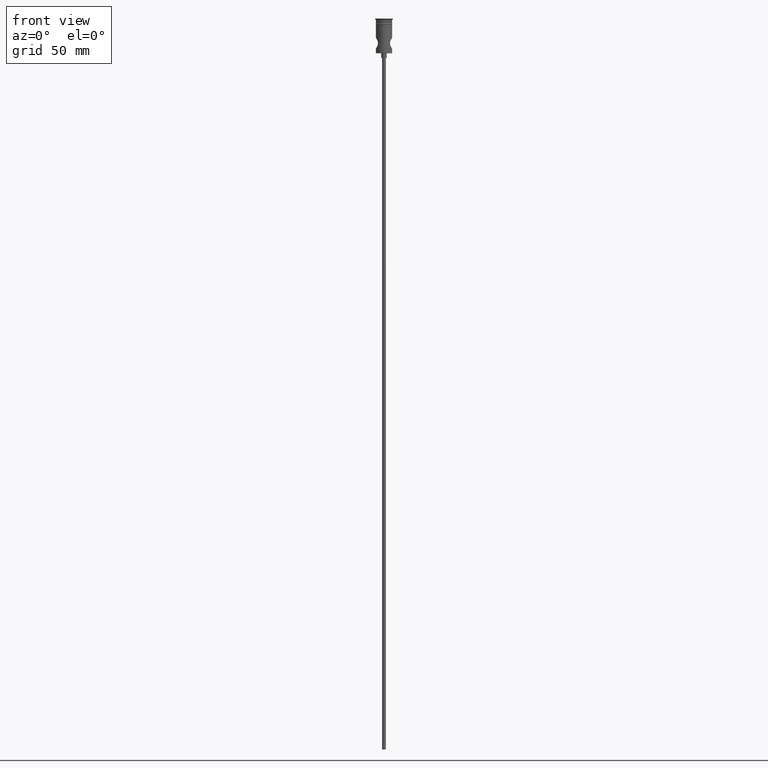
[diagram: clean part render]
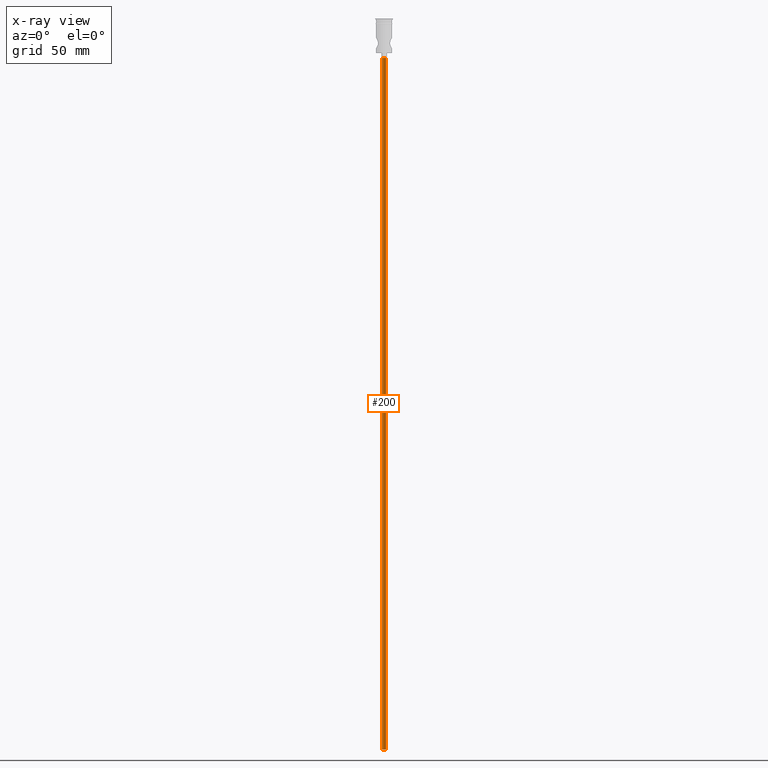
[diagram: x-ray — body ghosted, one internal face saturated and labeled with its STEP entity id]
A machine part, front view, then the same camera in x-ray: the body is ghosted and one INTERNAL B-rep face — a face not visible from any outside direction — is saturated and labeled: STEP entity #200.
In plain terms, the highlighted cylindrical surface (edge-blend (fillet) strip) has radius 1.25 mm, axis along (-0, -0, 1).
Its self-contained STEP definition (entity closure, byte-faithful):
#10 = VECTOR ( 'NONE', #704, 1000.000000000000000 ) ;
#28 = CIRCLE ( 'NONE', #841, 1.250000000000000000 ) ;
#96 = FACE_OUTER_BOUND ( 'NONE', #1212, .T. ) ;
#123 = CARTESIAN_POINT ( 'NONE',  ( 1.250000000000000000, 0.000000000000000000, -472.5000000000000568 ) ) ;
#150 = VERTEX_POINT ( 'NONE', #279 ) ;
#155 = CARTESIAN_POINT ( 'NONE',  ( -1.250000000000000000, 1.530808498934191571E-16, -472.5000000000000568 ) ) ;
#200 = ADVANCED_FACE ( 'NONE', ( #96 ), #889, .T. ) ;
#228 = LINE ( 'NONE', #123, #1082 ) ;
#243 = DIRECTION ( 'NONE',  ( -0.000000000000000000, -0.000000000000000000, 1.000000000000000000 ) ) ;
#279 = CARTESIAN_POINT ( 'NONE',  ( 1.250000000000000000, 0.000000000000000000, -25.50000000000000000 ) ) ;
#292 = VERTEX_POINT ( 'NONE', #764 ) ;
#315 = EDGE_CURVE ( 'NONE', #402, #292, #991, .T. ) ;
#325 = DIRECTION ( 'NONE',  ( 1.000000000000000000, 0.000000000000000000, 0.000000000000000000 ) ) ;
#370 = AXIS2_PLACEMENT_3D ( 'NONE', #411, #511, #975 ) ;
#402 = VERTEX_POINT ( 'NONE', #1096 ) ;
#411 = CARTESIAN_POINT ( 'NONE',  ( 0.000000000000000000, 0.000000000000000000, -472.5000000000000568 ) ) ;
#449 = DIRECTION ( 'NONE',  ( -0.000000000000000000, -0.000000000000000000, 1.000000000000000000 ) ) ;
#472 = ORIENTED_EDGE ( 'NONE', *, *, #315, .F. ) ;
#511 = DIRECTION ( 'NONE',  ( 0.000000000000000000, 0.000000000000000000, -1.000000000000000000 ) ) ;
#531 = CARTESIAN_POINT ( 'NONE',  ( 0.000000000000000000, 0.000000000000000000, -472.5000000000000568 ) ) ;
#562 = ORIENTED_EDGE ( 'NONE', *, *, #751, .F. ) ;
#583 = DIRECTION ( 'NONE',  ( 0.000000000000000000, 0.000000000000000000, -1.000000000000000000 ) ) ;
#685 = CARTESIAN_POINT ( 'NONE',  ( 0.000000000000000000, 0.000000000000000000, -25.50000000000000000 ) ) ;
#699 = LINE ( 'NONE', #155, #10 ) ;
#704 = DIRECTION ( 'NONE',  ( -0.000000000000000000, -0.000000000000000000, 1.000000000000000000 ) ) ;
#712 = ORIENTED_EDGE ( 'NONE', *, *, #795, .T. ) ;
#751 = EDGE_CURVE ( 'NONE', #292, #150, #228, .T. ) ;
#764 = CARTESIAN_POINT ( 'NONE',  ( 1.250000000000000000, 0.000000000000000000, -472.5000000000000568 ) ) ;
#795 = EDGE_CURVE ( 'NONE', #1037, #150, #28, .T. ) ;
#841 = AXIS2_PLACEMENT_3D ( 'NONE', #685, #583, #1378 ) ;
#867 = AXIS2_PLACEMENT_3D ( 'NONE', #531, #449, #325 ) ;
#889 = CYLINDRICAL_SURFACE ( 'NONE', #867, 1.250000000000000000 ) ;
#975 = DIRECTION ( 'NONE',  ( -1.000000000000000000, 0.000000000000000000, 0.000000000000000000 ) ) ;
#991 = CIRCLE ( 'NONE', #370, 1.250000000000000000 ) ;
#1037 = VERTEX_POINT ( 'NONE', #1316 ) ;
#1082 = VECTOR ( 'NONE', #243, 1000.000000000000000 ) ;
#1096 = CARTESIAN_POINT ( 'NONE',  ( -1.250000000000000000, 1.530808498934191571E-16, -472.5000000000000568 ) ) ;
#1212 = EDGE_LOOP ( 'NONE', ( #472, #1377, #712, #562 ) ) ;
#1316 = CARTESIAN_POINT ( 'NONE',  ( -1.250000000000000000, 1.530808498934191571E-16, -25.50000000000000000 ) ) ;
#1369 = EDGE_CURVE ( 'NONE', #402, #1037, #699, .T. ) ;
#1377 = ORIENTED_EDGE ( 'NONE', *, *, #1369, .T. ) ;
#1378 = DIRECTION ( 'NONE',  ( -1.000000000000000000, 0.000000000000000000, 0.000000000000000000 ) ) ;